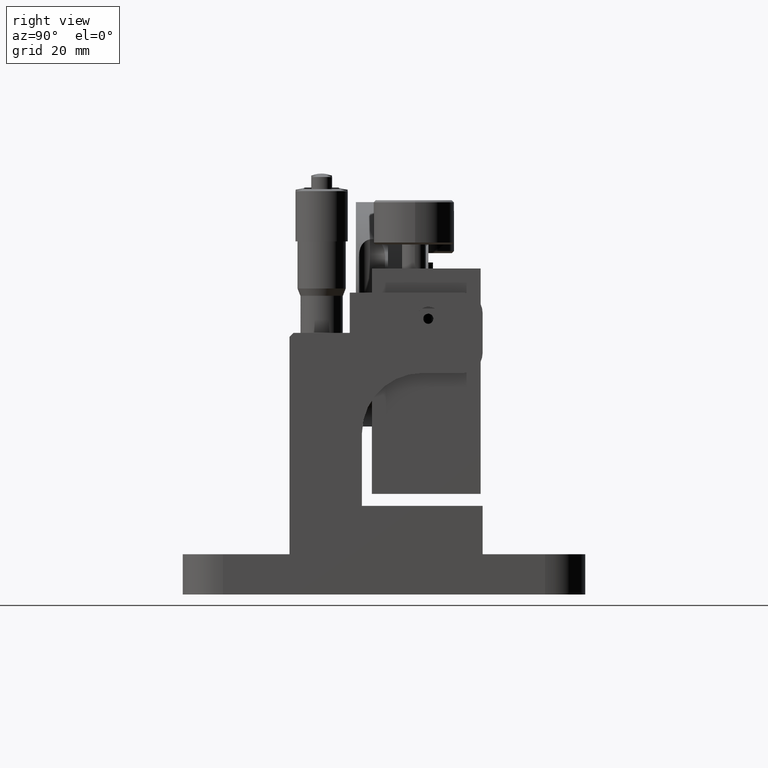
[diagram: clean part render]
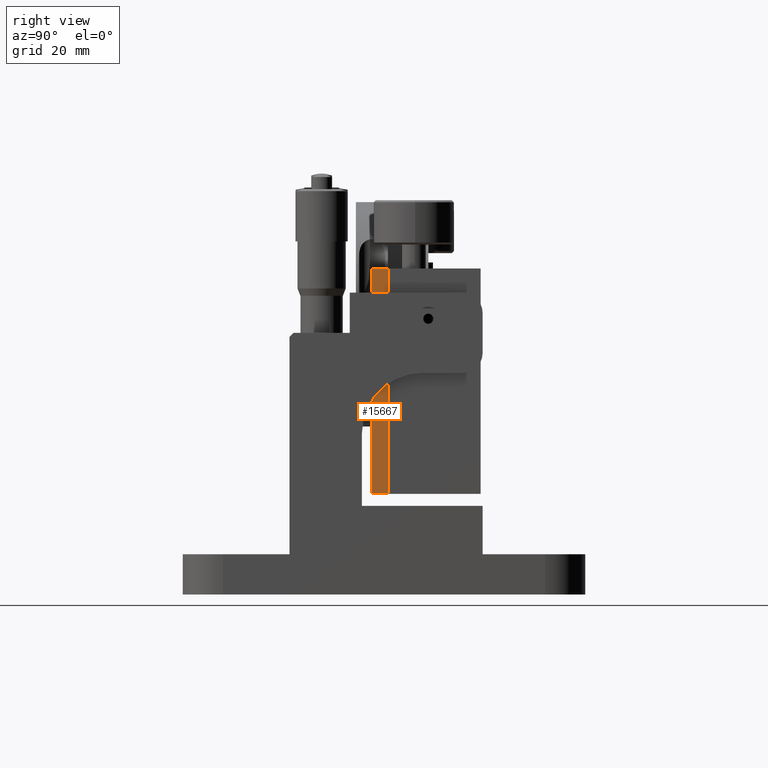
[diagram: same view with one face highlighted and labeled with its STEP entity id]
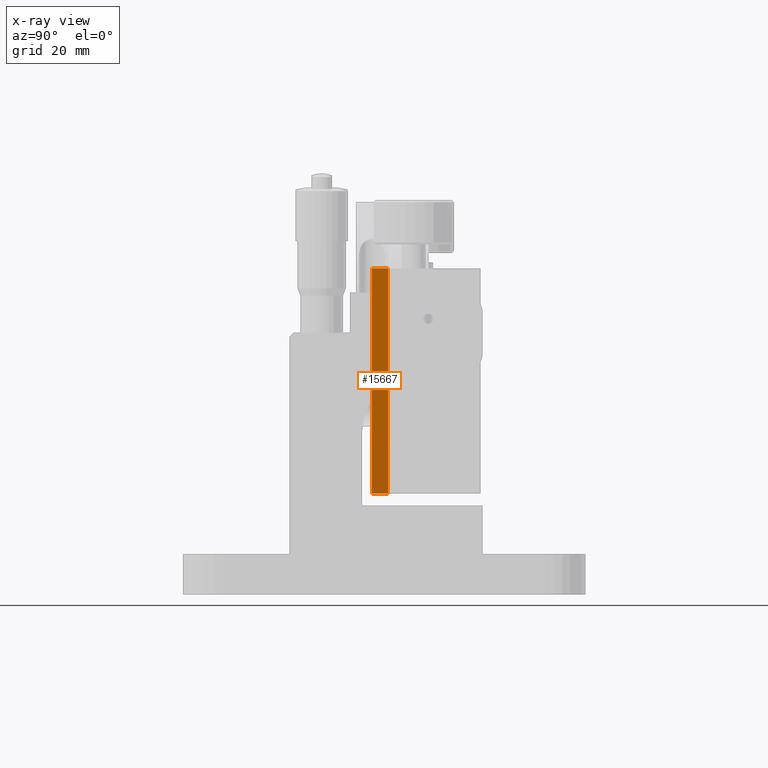
[diagram: x-ray of the same camera — body ghosted, the highlighted face saturated]
A machine part, right view. The second image highlights one B-rep face of the part: STEP entity #15667.
The next image is the same camera in x-ray: the body ghosted, the highlighted face saturated — about 0% of this face is hidden behind the body in this view.
In plain terms, the highlighted planar face has unit normal (-1, 0, -0).
Its self-contained STEP definition (entity closure, byte-faithful):
#7 = AXIS2_PLACEMENT_3D ( 'NONE', #11112, #1355, #3809 ) ;
#392 = DIRECTION ( 'NONE',  ( 1.750990936956637700E-016, 1.000000000000000000, 8.326672684688674100E-017 ) ) ;
#1355 = DIRECTION ( 'NONE',  ( -1.000000000000000000, 1.750990936956638200E-016, -4.707205844235801000E-016 ) ) ;
#2469 = LINE ( 'NONE', #5350, #7138 ) ;
#3005 = EDGE_CURVE ( 'NONE', #12914, #8302, #8338, .T. ) ;
#3536 = CARTESIAN_POINT ( 'NONE',  ( 49.99999999999991500, 0.9999999999999926700, -9.389719633909694000 ) ) ;
#3719 = CARTESIAN_POINT ( 'NONE',  ( 49.99999999999994300, -3.000000000000002700, -65.38971963390969200 ) ) ;
#3809 = DIRECTION ( 'NONE',  ( -1.750990936956637700E-016, -1.000000000000000000, -8.326672684688674100E-017 ) ) ;
#3833 = VECTOR ( 'NONE', #11810, 1000.000000000000000 ) ;
#4805 = EDGE_CURVE ( 'NONE', #8302, #11168, #10850, .T. ) ;
#4946 = EDGE_CURVE ( 'NONE', #8986, #11168, #7929, .T. ) ;
#5350 = CARTESIAN_POINT ( 'NONE',  ( 49.99999999999994300, -3.000000000000002700, -65.38971963390969200 ) ) ;
#5630 = ORIENTED_EDGE ( 'NONE', *, *, #4805, .T. ) ;
#6440 = CARTESIAN_POINT ( 'NONE',  ( 49.99999999999991500, -3.000000000000007500, -9.389719633909694000 ) ) ;
#6749 = VECTOR ( 'NONE', #7083, 1000.000000000000000 ) ;
#7083 = DIRECTION ( 'NONE',  ( 1.750990936956637700E-016, 1.000000000000000000, 8.326672684688674100E-017 ) ) ;
#7138 = VECTOR ( 'NONE', #14047, 1000.000000000000000 ) ;
#7456 = EDGE_LOOP ( 'NONE', ( #5630, #12790, #14420, #14312 ) ) ;
#7572 = PLANE ( 'NONE',  #7 ) ;
#7929 = LINE ( 'NONE', #9614, #6749 ) ;
#8302 = VERTEX_POINT ( 'NONE', #13623 ) ;
#8338 = LINE ( 'NONE', #10197, #9525 ) ;
#8986 = VERTEX_POINT ( 'NONE', #6440 ) ;
#9525 = VECTOR ( 'NONE', #392, 1000.000000000000000 ) ;
#9614 = CARTESIAN_POINT ( 'NONE',  ( 49.99999999999991500, -3.000000000000007500, -9.389719633909694000 ) ) ;
#10197 = CARTESIAN_POINT ( 'NONE',  ( 49.99999999999994300, -3.000000000000002700, -65.38971963390969200 ) ) ;
#10850 = LINE ( 'NONE', #11711, #3833 ) ;
#11112 = CARTESIAN_POINT ( 'NONE',  ( 49.99999999999994300, -3.000000000000002700, -65.38971963390969200 ) ) ;
#11168 = VERTEX_POINT ( 'NONE', #3536 ) ;
#11711 = CARTESIAN_POINT ( 'NONE',  ( 49.99999999999994300, 0.9999999999999974500, -65.38971963390969200 ) ) ;
#11810 = DIRECTION ( 'NONE',  ( -4.707205844235788200E-016, -8.326672684688674100E-017, 1.000000000000000000 ) ) ;
#12790 = ORIENTED_EDGE ( 'NONE', *, *, #4946, .F. ) ;
#12914 = VERTEX_POINT ( 'NONE', #3719 ) ;
#13623 = CARTESIAN_POINT ( 'NONE',  ( 49.99999999999994300, 0.9999999999999974500, -65.38971963390969200 ) ) ;
#13711 = FACE_OUTER_BOUND ( 'NONE', #7456, .T. ) ;
#14047 = DIRECTION ( 'NONE',  ( -4.707205844235788200E-016, -8.326672684688674100E-017, 1.000000000000000000 ) ) ;
#14312 = ORIENTED_EDGE ( 'NONE', *, *, #3005, .T. ) ;
#14420 = ORIENTED_EDGE ( 'NONE', *, *, #14612, .F. ) ;
#14612 = EDGE_CURVE ( 'NONE', #12914, #8986, #2469, .T. ) ;
#15667 = ADVANCED_FACE ( 'NONE', ( #13711 ), #7572, .F. ) ;